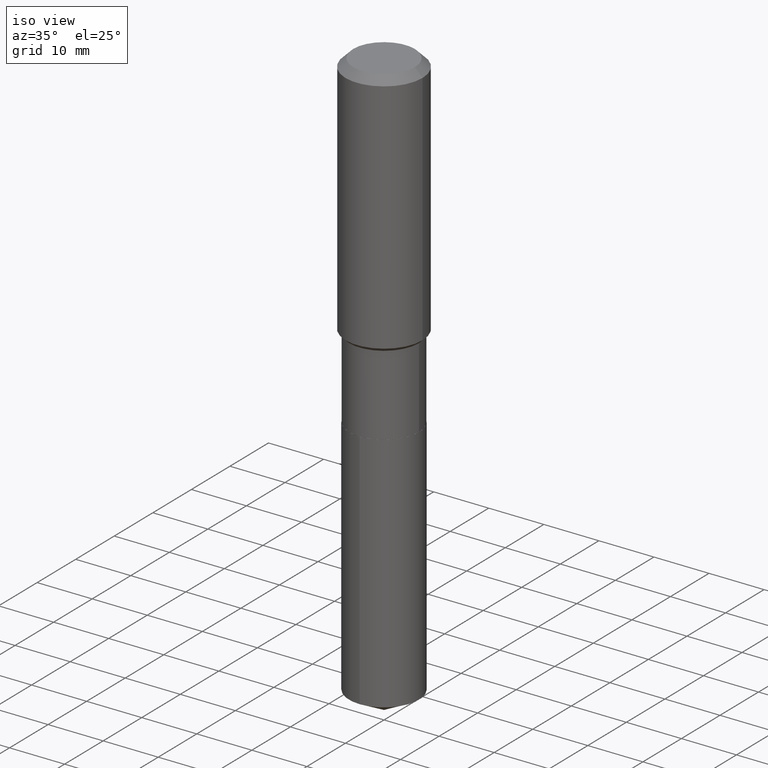
[diagram: clean part render]
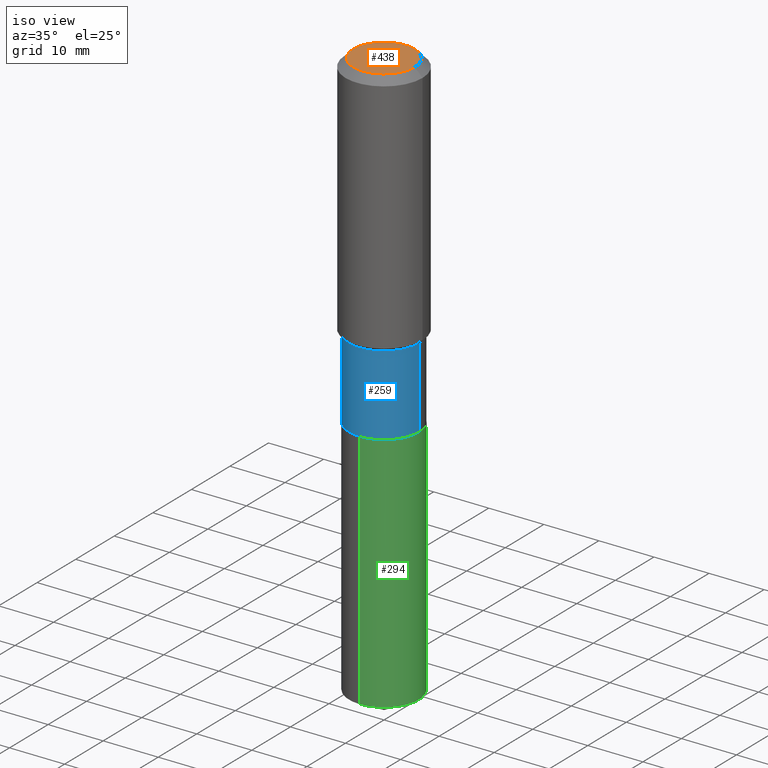
[diagram: same view with three faces highlighted in distinct colors, each labeled with its STEP entity id]
A machine part, iso view with three faces highlighted in distinct colors.
Their STEP definitions:

[orange] entity #438 — the highlighted planar face has unit normal (0, -0, -1).
#7 = DIRECTION ( 'NONE',  ( 1.000000000000000000, -6.982962677686266711E-15, 4.876132675269083677E-29 ) ) ;
#12 = DIRECTION ( 'NONE',  ( 1.000000000000000000, -6.982962677686266711E-15, 4.876132675269083677E-29 ) ) ;
#42 = EDGE_LOOP ( 'NONE', ( #322, #81 ) ) ;
#81 = ORIENTED_EDGE ( 'NONE', *, *, #114, .T. ) ;
#107 = AXIS2_PLACEMENT_3D ( 'NONE', #197, #348, #7 ) ;
#111 = CARTESIAN_POINT ( 'NONE',  ( -9.439721640706190018E-47, 1.347742071746724849E-32, 3.860086710912454339E-18 ) ) ;
#114 = EDGE_CURVE ( 'NONE', #439, #257, #220, .T. ) ;
#155 = AXIS2_PLACEMENT_3D ( 'NONE', #466, #276, #321 ) ;
#170 = PLANE ( 'NONE',  #155 ) ;
#197 = CARTESIAN_POINT ( 'NONE',  ( -9.439721640706190018E-47, 1.347742071746724849E-32, 3.860086710912454339E-18 ) ) ;
#208 = FACE_OUTER_BOUND ( 'NONE', #42, .T. ) ;
#220 = CIRCLE ( 'NONE', #107, 0.2204800000000000093 ) ;
#257 = VERTEX_POINT ( 'NONE', #448 ) ;
#276 = DIRECTION ( 'NONE',  ( 2.438088387897960049E-29, -3.491481338843145188E-15, -1.000000000000000000 ) ) ;
#290 = AXIS2_PLACEMENT_3D ( 'NONE', #111, #350, #12 ) ;
#321 = DIRECTION ( 'NONE',  ( -1.000000000000000000, 6.982962677686265922E-15, -4.876176775795935793E-29 ) ) ;
#322 = ORIENTED_EDGE ( 'NONE', *, *, #323, .T. ) ;
#323 = EDGE_CURVE ( 'NONE', #257, #439, #437, .T. ) ;
#348 = DIRECTION ( 'NONE',  ( -2.445468806185136597E-29, 3.491481338843145583E-15, 1.000000000000000000 ) ) ;
#350 = DIRECTION ( 'NONE',  ( -2.445468806185136597E-29, 3.491481338843145583E-15, 1.000000000000000000 ) ) ;
#437 = CIRCLE ( 'NONE', #290, 0.2204800000000000093 ) ;
#438 = ADVANCED_FACE ( 'NONE', ( #208 ), #170, .F. ) ;
#439 = VERTEX_POINT ( 'NONE', #472 ) ;
#448 = CARTESIAN_POINT ( 'NONE',  ( -0.2204800000000000093, 1.635828836874783961E-15, 3.860086710901350968E-18 ) ) ;
#466 = CARTESIAN_POINT ( 'NONE',  ( -4.719860820353095009E-47, 6.738710358733624243E-33, 1.930043355456227170E-18 ) ) ;
#472 = CARTESIAN_POINT ( 'NONE',  ( 0.2204800000000000093, -1.797903149065768707E-15, 3.860086710924123164E-18 ) ) ;

[blue] entity #259 — the highlighted cylindrical surface (partial cylindrical patch) has radius 6.35 mm, axis along (-0, 0, 1).
#1 = CYLINDRICAL_SURFACE ( 'NONE', #47, 0.2499999999999999722 ) ;
#8 = VERTEX_POINT ( 'NONE', #128 ) ;
#24 = EDGE_CURVE ( 'NONE', #269, #456, #210, .T. ) ;
#32 = DIRECTION ( 'NONE',  ( 1.000000000000000000, -6.982962677686266711E-15, 0.000000000000000000 ) ) ;
#47 = AXIS2_PLACEMENT_3D ( 'NONE', #450, #414, #150 ) ;
#49 = CARTESIAN_POINT ( 'NONE',  ( 0.2500000000000000000, -9.950372667569074950E-15, -2.349900000000000322 ) ) ;
#71 = AXIS2_PLACEMENT_3D ( 'NONE', #120, #418, #314 ) ;
#75 = VECTOR ( 'NONE', #360, 39.37007874015748143 ) ;
#120 = CARTESIAN_POINT ( 'NONE',  ( 4.341685318501092485E-29, -6.198775968982121785E-15, -1.775400000000000311 ) ) ;
#128 = CARTESIAN_POINT ( 'NONE',  ( -0.2500000000000000555, -5.425347144164564170E-15, -2.349900000000000322 ) ) ;
#150 = DIRECTION ( 'NONE',  ( 1.000000000000000000, -6.982962677686266711E-15, 4.876176775795935793E-29 ) ) ;
#186 = CARTESIAN_POINT ( 'NONE',  ( -0.2499999999999999167, -5.425347144164564958E-15, -1.775400000000000311 ) ) ;
#189 = DIRECTION ( 'NONE',  ( -2.445468806185136877E-29, 3.491481338843145188E-15, 1.000000000000000000 ) ) ;
#195 = EDGE_CURVE ( 'NONE', #8, #269, #419, .T. ) ;
#206 = CARTESIAN_POINT ( 'NONE',  ( 0.2499999999999999722, -1.745740669421566480E-15, 1.219044193948983808E-29 ) ) ;
#210 = LINE ( 'NONE', #206, #75 ) ;
#226 = EDGE_CURVE ( 'NONE', #8, #233, #256, .T. ) ;
#233 = VERTEX_POINT ( 'NONE', #186 ) ;
#242 = ORIENTED_EDGE ( 'NONE', *, *, #24, .T. ) ;
#248 = CARTESIAN_POINT ( 'NONE',  ( 0.2499999999999999167, -7.944516638403687674E-15, -1.775400000000000311 ) ) ;
#256 = LINE ( 'NONE', #403, #369 ) ;
#259 = ADVANCED_FACE ( 'NONE', ( #297 ), #1, .T. ) ;
#269 = VERTEX_POINT ( 'NONE', #49 ) ;
#271 = ORIENTED_EDGE ( 'NONE', *, *, #226, .F. ) ;
#297 = FACE_OUTER_BOUND ( 'NONE', #467, .T. ) ;
#301 = AXIS2_PLACEMENT_3D ( 'NONE', #486, #367, #32 ) ;
#314 = DIRECTION ( 'NONE',  ( 1.000000000000000000, -6.982962677686269077E-15, 0.000000000000000000 ) ) ;
#360 = DIRECTION ( 'NONE',  ( -2.445468806185136877E-29, 3.491481338843145188E-15, 1.000000000000000000 ) ) ;
#367 = DIRECTION ( 'NONE',  ( -2.445468806185136597E-29, 3.491481338843145583E-15, 1.000000000000000000 ) ) ;
#369 = VECTOR ( 'NONE', #189, 39.37007874015748143 ) ;
#383 = CIRCLE ( 'NONE', #71, 0.2499999999999999167 ) ;
#403 = CARTESIAN_POINT ( 'NONE',  ( -0.2499999999999999722, 1.776356839400250267E-15, -1.229733772563726305E-29 ) ) ;
#414 = DIRECTION ( 'NONE',  ( -2.445468806185136597E-29, 3.491481338843145583E-15, 1.000000000000000000 ) ) ;
#418 = DIRECTION ( 'NONE',  ( -2.445468806185136597E-29, 3.491481338843145583E-15, 1.000000000000000000 ) ) ;
#419 = CIRCLE ( 'NONE', #301, 0.2500000000000000000 ) ;
#427 = EDGE_CURVE ( 'NONE', #233, #456, #383, .T. ) ;
#430 = ORIENTED_EDGE ( 'NONE', *, *, #195, .T. ) ;
#450 = CARTESIAN_POINT ( 'NONE',  ( 0.000000000000000000, 0.000000000000000000, 0.000000000000000000 ) ) ;
#456 = VERTEX_POINT ( 'NONE', #248 ) ;
#467 = EDGE_LOOP ( 'NONE', ( #271, #430, #242, #474 ) ) ;
#474 = ORIENTED_EDGE ( 'NONE', *, *, #427, .F. ) ;
#486 = CARTESIAN_POINT ( 'NONE',  ( 5.746607147654452891E-29, -8.204631998147508272E-15, -2.349900000000000322 ) ) ;

[green] entity #294 — the highlighted cylindrical surface (partial cylindrical patch) has radius 6.35 mm, axis along (-0, 0, 1).
#13 = ORIENTED_EDGE ( 'NONE', *, *, #142, .F. ) ;
#15 = CARTESIAN_POINT ( 'NONE',  ( -1.745740669421508894E-15, -0.2500000000000082157, -2.350399999999999157 ) ) ;
#21 = LINE ( 'NONE', #15, #164 ) ;
#25 = EDGE_CURVE ( 'NONE', #351, #110, #21, .T. ) ;
#35 = AXIS2_PLACEMENT_3D ( 'NONE', #470, #131, #125 ) ;
#40 = CARTESIAN_POINT ( 'NONE',  ( 5.747829882057545692E-29, -8.206377738816930564E-15, -2.350400000000000045 ) ) ;
#54 = DIRECTION ( 'NONE',  ( -2.445566419007551929E-29, 3.491341551725669287E-15, 1.000000000000000000 ) ) ;
#68 = ORIENTED_EDGE ( 'NONE', *, *, #243, .T. ) ;
#77 = VECTOR ( 'NONE', #144, 39.37007874015748143 ) ;
#93 = CARTESIAN_POINT ( 'NONE',  ( -1.745740669421508894E-15, -0.2500000000000082157, -2.350399999999999157 ) ) ;
#104 = EDGE_CURVE ( 'NONE', #351, #461, #335, .T. ) ;
#110 = VERTEX_POINT ( 'NONE', #93 ) ;
#125 = DIRECTION ( 'NONE',  ( -6.982962677686265922E-15, -1.000000000000000000, 4.370956789862821150E-15 ) ) ;
#131 = DIRECTION ( 'NONE',  ( -2.445566419007551929E-29, 3.491341551725669682E-15, 1.000000000000000000 ) ) ;
#142 = EDGE_CURVE ( 'NONE', #110, #285, #153, .T. ) ;
#144 = DIRECTION ( 'NONE',  ( -2.445566419007551929E-29, 3.491341551725669287E-15, 1.000000000000000000 ) ) ;
#153 = CIRCLE ( 'NONE', #451, 0.2500000000000000000 ) ;
#161 = CARTESIAN_POINT ( 'NONE',  ( -1.745740669421466492E-15, -0.2500000000000141553, -4.079672642084629430 ) ) ;
#164 = VECTOR ( 'NONE', #54, 39.37007874015748143 ) ;
#190 = ORIENTED_EDGE ( 'NONE', *, *, #104, .T. ) ;
#192 = CARTESIAN_POINT ( 'NONE',  ( 1.776356839400350256E-15, 0.2499999999999918121, -2.350400000000000933 ) ) ;
#227 = DIRECTION ( 'NONE',  ( -2.445566419007551929E-29, 3.491341551725669682E-15, 1.000000000000000000 ) ) ;
#243 = EDGE_CURVE ( 'NONE', #461, #285, #296, .T. ) ;
#274 = DIRECTION ( 'NONE',  ( -6.982962677686265922E-15, -1.000000000000000000, 3.278217592397115862E-15 ) ) ;
#282 = CARTESIAN_POINT ( 'NONE',  ( 1.776356839400349467E-15, 0.2499999999999856781, -4.079672642084632095 ) ) ;
#285 = VERTEX_POINT ( 'NONE', #192 ) ;
#294 = ADVANCED_FACE ( 'NONE', ( #411 ), #311, .T. ) ;
#296 = LINE ( 'NONE', #480, #77 ) ;
#299 = DIRECTION ( 'NONE',  ( -6.982962677686265922E-15, -1.000000000000000000, 3.278217592397115862E-15 ) ) ;
#307 = ORIENTED_EDGE ( 'NONE', *, *, #25, .F. ) ;
#311 = CYLINDRICAL_SURFACE ( 'NONE', #421, 0.2500000000000000000 ) ;
#335 = CIRCLE ( 'NONE', #35, 0.2500000000000000000 ) ;
#351 = VERTEX_POINT ( 'NONE', #161 ) ;
#411 = FACE_OUTER_BOUND ( 'NONE', #485, .T. ) ;
#421 = AXIS2_PLACEMENT_3D ( 'NONE', #457, #227, #299 ) ;
#451 = AXIS2_PLACEMENT_3D ( 'NONE', #40, #452, #274 ) ;
#452 = DIRECTION ( 'NONE',  ( -2.445566419007551929E-29, 3.491341551725669682E-15, 1.000000000000000000 ) ) ;
#457 = CARTESIAN_POINT ( 'NONE',  ( 5.747829882057545692E-29, -8.206377738816930564E-15, -2.350400000000000045 ) ) ;
#461 = VERTEX_POINT ( 'NONE', #282 ) ;
#470 = CARTESIAN_POINT ( 'NONE',  ( 9.976880984848183371E-29, -1.424385916838943519E-14, -4.079672642084631207 ) ) ;
#480 = CARTESIAN_POINT ( 'NONE',  ( 1.776356839400307657E-15, 0.2499999999999918121, -2.350400000000000933 ) ) ;
#485 = EDGE_LOOP ( 'NONE', ( #190, #68, #13, #307 ) ) ;